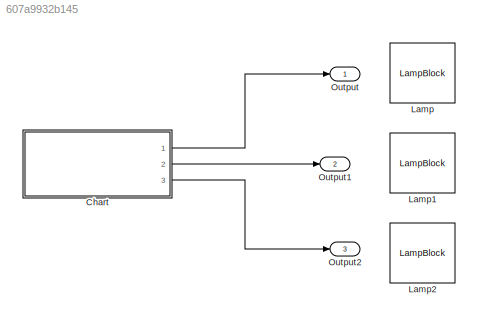
MODEL slx_607a9932b145
KIND model
CONFIG AbsTol = auto
CONFIG EnableMultiTasking = off
CONFIG FixedStep = auto
CONFIG MaxStep = auto
CONFIG MinStep = auto
CONFIG RelTol = 1e-3
CONFIG SampleTimeConstraint = Unconstrained
CONFIG Solver = FixedStepDiscrete
CONFIG SolverName = FixedStepDiscrete
CONFIG StartTime = 0.0
CONFIG StopTime = Inf
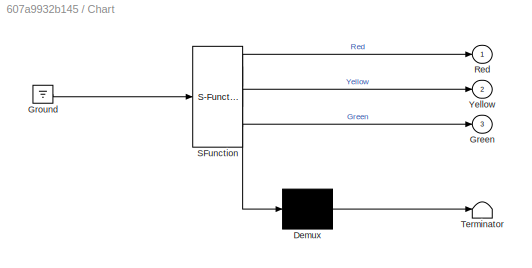
BLOCK [SubSystem] Chart
  BlockKeywords = __PRM__SERIALIZED__DATA__:Stateflow Chart,Stateflow Diagram
  ErrorFcn = Stateflow.Translate.translate
  PermitHierarchicalResolution = ExplicitOnly
  Ports = [0, 3]
  RequestExecContextInheritance = off
  SFBlockType = Chart
  TreatAsAtomicUnit = on
BLOCK [Demux] Chart/ Demux 
  Outputs = 1
  Ports = [1, 1]
BLOCK [Ground] Chart/ Ground 
BLOCK [S-Function] Chart/ SFunction 
  EnableBusSupport = on
  FunctionName = sf_sfun
  PortCounts = [1 4]
  Ports = [1, 4]
  SFcnIsStateOwnerBlock = off
  SFunctionDeploymentMode = off
  Tag = Stateflow S-Function TrafficLight_SF_Topic3_Task3 3
BLOCK [Terminator] Chart/ Terminator 
BLOCK [Outport] Chart/Green
  IconDisplay = Port number
  Port = 3
BLOCK [Outport] Chart/Red
  IconDisplay = Port number
BLOCK [Outport] Chart/Yellow
  IconDisplay = Port number
  Port = 2
BLOCK [LampBlock] Lamp
BLOCK [LampBlock] Lamp1
BLOCK [LampBlock] Lamp2
BLOCK [Outport] Output
  IconDisplay = Port number
BLOCK [Outport] Output1
  IconDisplay = Port number
  Port = 2
BLOCK [Outport] Output2
  IconDisplay = Port number
  Port = 3
LINE Chart:1 -> Output:1
LINE Chart:2 -> Output1:1
LINE Chart:3 -> Output2:1
CHART Chart states=3 transitions=4
  STATE_LABEL 'Stop\nen:\nRed = 0;\nYellow = 0;\nGreen = 0;\ndu:\nRed = 1;\nYellow = 0;\nGreen = 0;\nexit:\nRed = 0;\nYellow = 0;\nGreen = 0;'
  STATE_LABEL 'Ready\nen:\ndu:\nRed = 0;\nYellow = 1;\nGreen = 0;\nexit:\nRed = 0;\nYellow = 0;\nGreen = 0;'
  STATE_LABEL 'Go\nen:\ndu:\nRed = 0;\nYellow = 0;\nGreen = 1;\nexit:\nRed = 0;\nYellow = 0;\nGreen = 1;'
